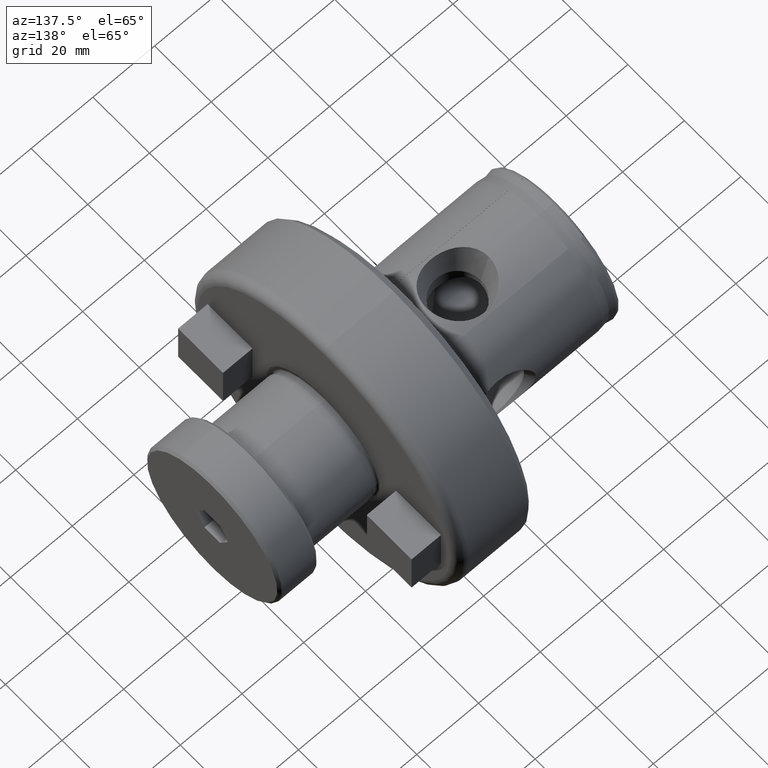
[diagram: clean part render]
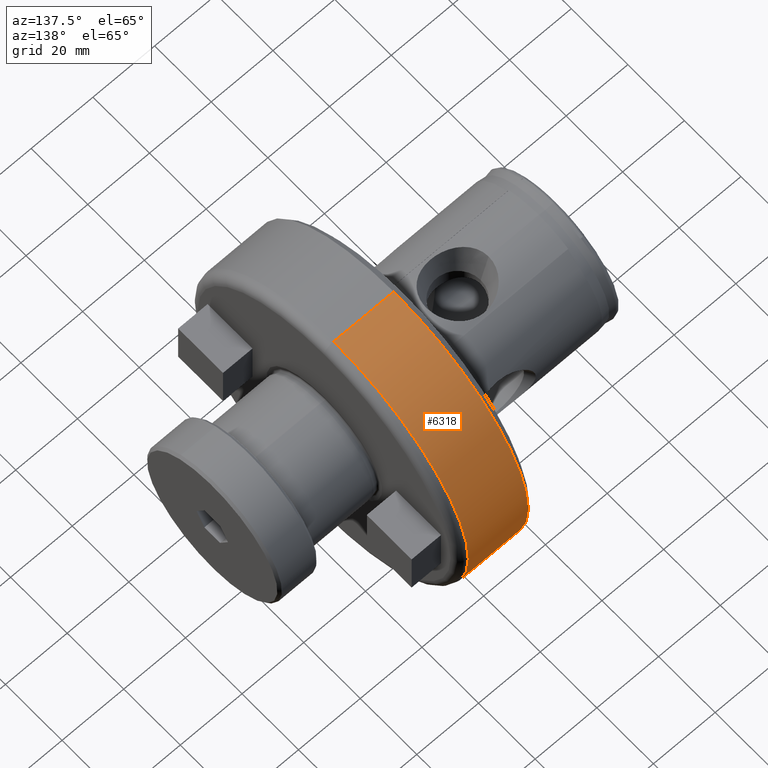
[diagram: same view with one face highlighted and labeled with its STEP entity id]
A machine part, auxiliary view. The second image highlights one B-rep face of the part: STEP entity #6318.
In plain terms, the highlighted cylindrical surface (partial cylindrical patch) has radius 47.625 mm, axis along (-1, -0, -0).
Its self-contained STEP definition (entity closure, byte-faithful):
#331 = DIRECTION ( 'NONE',  ( -1.000000000000000000, -0.0000000000000000000, -0.0000000000000000000 ) ) ;
#334 = DIRECTION ( 'NONE',  ( 0.0000000000000000000, 0.0000000000000000000, 1.000000000000000000 ) ) ;
#336 = CARTESIAN_POINT ( 'NONE',  ( 0.0000000000000000000, 0.0000000000000000000, 0.0000000000000000000 ) ) ;
#646 = VECTOR ( 'NONE', #5146, 1000.000000000000000 ) ;
#654 = LINE ( 'NONE', #5145, #646 ) ;
#683 = CIRCLE ( 'NONE', #3208, 47.62500000000000000 ) ;
#685 = CIRCLE ( 'NONE', #4759, 47.62500000000000000 ) ;
#1042 = FACE_OUTER_BOUND ( 'NONE', #6939, .T. ) ;
#1044 = CYLINDRICAL_SURFACE ( 'NONE', #7256, 47.62500000000000000 ) ;
#2225 = VECTOR ( 'NONE', #4936, 1000.000000000000000 ) ;
#2230 = LINE ( 'NONE', #4935, #2225 ) ;
#2571 = EDGE_CURVE ( 'NONE', #3863, #3855, #2230, .T. ) ;
#2955 = EDGE_CURVE ( 'NONE', #3984, #3852, #654, .T. ) ;
#2979 = EDGE_CURVE ( 'NONE', #3863, #3984, #683, .T. ) ;
#2980 = EDGE_CURVE ( 'NONE', #3855, #3852, #685, .T. ) ;
#3208 = AXIS2_PLACEMENT_3D ( 'NONE', #5279, #5281, #5282 ) ;
#3852 = VERTEX_POINT ( 'NONE', #5773 ) ;
#3855 = VERTEX_POINT ( 'NONE', #5783 ) ;
#3863 = VERTEX_POINT ( 'NONE', #5770 ) ;
#3984 = VERTEX_POINT ( 'NONE', #5827 ) ;
#4036 = ORIENTED_EDGE ( 'NONE', *, *, #2571, .F. ) ;
#4040 = ORIENTED_EDGE ( 'NONE', *, *, #2980, .F. ) ;
#4057 = ORIENTED_EDGE ( 'NONE', *, *, #2955, .T. ) ;
#4060 = ORIENTED_EDGE ( 'NONE', *, *, #2979, .T. ) ;
#4759 = AXIS2_PLACEMENT_3D ( 'NONE', #5276, #5283, #5284 ) ;
#4935 = CARTESIAN_POINT ( 'NONE',  ( 0.0000000000000000000, 0.0000000000000000000, 47.62500000000000000 ) ) ;
#4936 = DIRECTION ( 'NONE',  ( -1.000000000000000000, -0.0000000000000000000, -0.0000000000000000000 ) ) ;
#5145 = CARTESIAN_POINT ( 'NONE',  ( 0.0000000000000000000, 5.832380380939270100E-015, -47.62500000000000000 ) ) ;
#5146 = DIRECTION ( 'NONE',  ( -1.000000000000000000, -0.0000000000000000000, -0.0000000000000000000 ) ) ;
#5276 = CARTESIAN_POINT ( 'NONE',  ( 52.49999999999999300, 0.0000000000000000000, 0.0000000000000000000 ) ) ;
#5279 = CARTESIAN_POINT ( 'NONE',  ( 71.99999999999997200, 0.0000000000000000000, 0.0000000000000000000 ) ) ;
#5281 = DIRECTION ( 'NONE',  ( -1.000000000000000000, -0.0000000000000000000, -0.0000000000000000000 ) ) ;
#5282 = DIRECTION ( 'NONE',  ( 0.0000000000000000000, 0.0000000000000000000, 1.000000000000000000 ) ) ;
#5283 = DIRECTION ( 'NONE',  ( -1.000000000000000000, -0.0000000000000000000, -0.0000000000000000000 ) ) ;
#5284 = DIRECTION ( 'NONE',  ( 0.0000000000000000000, 0.0000000000000000000, 1.000000000000000000 ) ) ;
#5770 = CARTESIAN_POINT ( 'NONE',  ( 71.99999999999997200, 0.0000000000000000000, 47.62500000000000000 ) ) ;
#5773 = CARTESIAN_POINT ( 'NONE',  ( 52.49999999999999300, 0.0000000000000000000, -47.62500000000000000 ) ) ;
#5783 = CARTESIAN_POINT ( 'NONE',  ( 52.49999999999999300, 5.832380380939270100E-015, 47.62500000000000000 ) ) ;
#5827 = CARTESIAN_POINT ( 'NONE',  ( 71.99999999999997200, 5.832380380939270100E-015, -47.62500000000000000 ) ) ;
#6318 = ADVANCED_FACE ( 'NONE', ( #1042 ), #1044, .T. ) ;
#6939 = EDGE_LOOP ( 'NONE', ( #4060, #4057, #4040, #4036 ) ) ;
#7256 = AXIS2_PLACEMENT_3D ( 'NONE', #336, #331, #334 ) ;